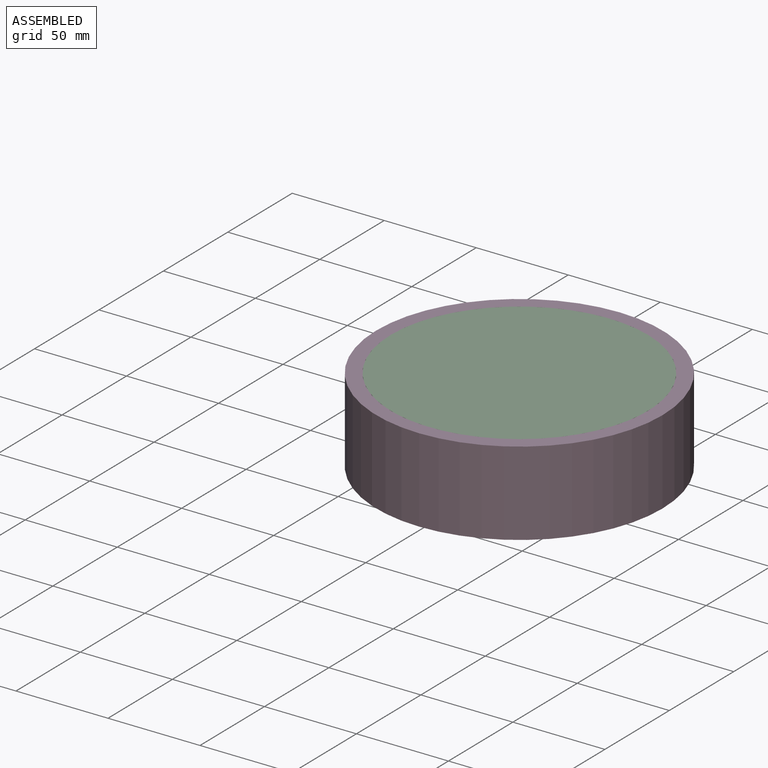
[diagram: assembled view]
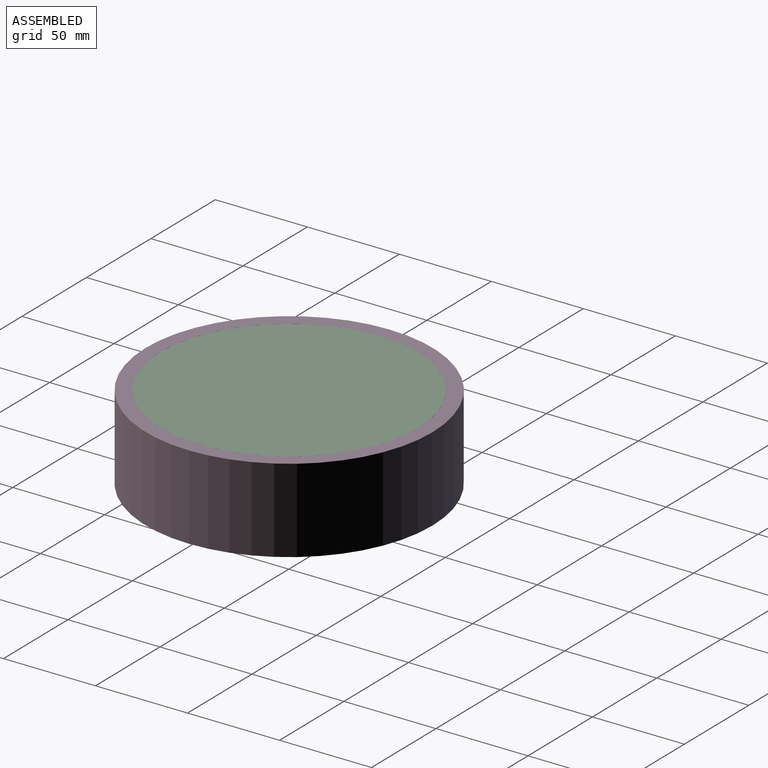
[diagram: assembled view, second angle]
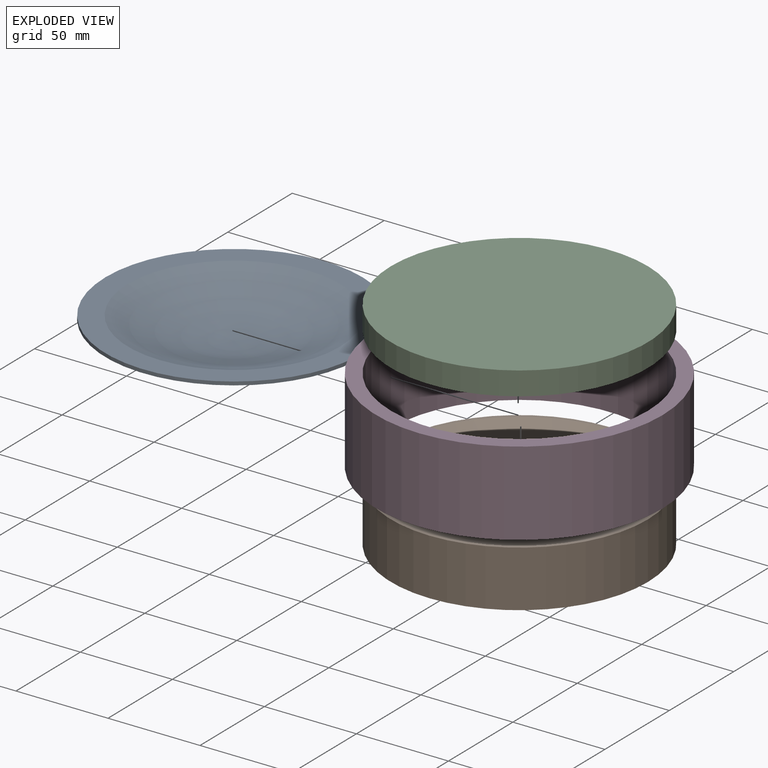
[diagram: exploded view]
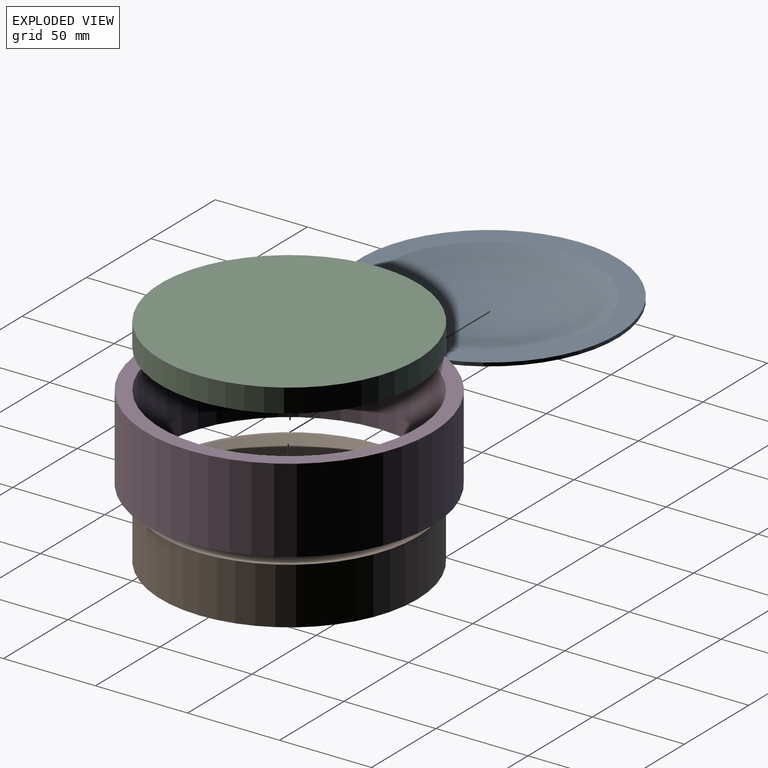
[diagram: exploded view, second angle]
ASSEMBLY  parts=4 mates=2
PART A: 5 faces, bbox 139.7x139.7x19.8 mm
  f0: sphere r=139.7mm, area 10922mm2, adj f1
  f1: plane 139.7x139.7mm, normal (0,0,-1), area 4892.3mm2, adj f0,f2
  f2: cylinder r=69.85mm len=139.7mm, axis (0,0,1), area 836.1mm2, adj f1,f3
  f3: plane 139.7x139.7mm, normal (0,0,1), area 661.6mm2, adj f2,f4
  f4: sphere r=139.7mm, area 15667.2mm2, adj f3
PART B: 4 faces, bbox 139.7x139.7x30.7 mm
  f0: plane 139.7x139.7mm, normal (0,0,-1), area 15327.9mm2, adj f1
  f1: cylinder r=69.85mm len=139.7mm, axis (0,0,1), area 13488.6mm2, adj f0,f2
  f2: plane 139.7x139.7mm, normal (0,0,1), area 770.4mm2, adj f1,f3
  f3: sphere r=144.78mm, area 15465.5mm2, adj f2
PART C: 4 faces, bbox 139.7x139.7x25.5 mm
  f0: cylinder r=69.85mm len=139.7mm, axis (0,0,1), area 5573.8mm2, adj f1,f3
  f1: plane 139.7x139.7mm, normal (0,0,-1), area 15327.9mm2, adj f0
  f2: sphere r=144.78mm, area 11647.7mm2, adj f3
  f3: plane 139.7x139.7mm, normal (0,0,1), area 4195.3mm2, adj f0,f2
PART D: 4 faces, bbox 155.6x155.6x45.8 mm
  f0: cylinder r=69.85mm len=139.7mm, axis (0,0,-1), area 20121.4mm2, adj f2,f3
  f1: cylinder r=77.79mm len=155.58mm, axis (0,0,-1), area 22407.9mm2, adj f2,f3
  f2: plane 155.58x155.58mm, normal (0,0,1), area 3681.5mm2, adj f0,f1
  f3: plane 155.58x155.58mm, normal (0,0,-1), area 3681.5mm2, adj f0,f1
PLACE A rot(axis=(0,1,0),180deg) t=(-1.1,-0.53,9.81)mm
PLACE B t=(-1.1,-0.53,-22.83)mm
PLACE C rot(axis=(0,1,0),180deg) t=(-1.1,-0.53,10.32)mm
PLACE D t=(-1.1,-0.53,-22.83)mm
MATE fastened C.f0 <-> D.f0  axis (0,0,1) through (-1.1,-0.53,23.02)mm
MATE fastened B.f1 <-> D.f0  axis (0,0,-1) through (-1.1,-0.53,-22.83)mm
